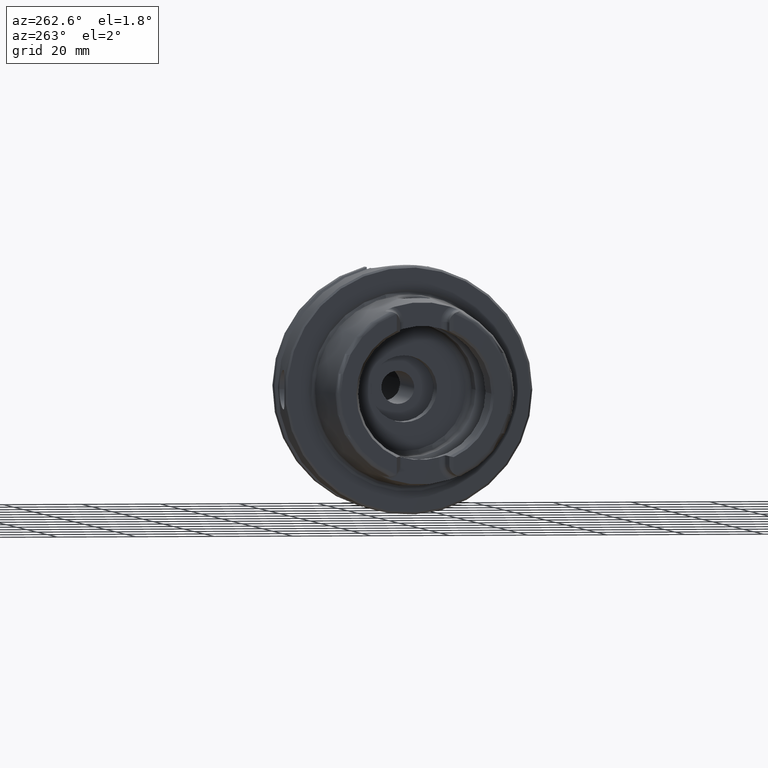
[diagram: clean part render]
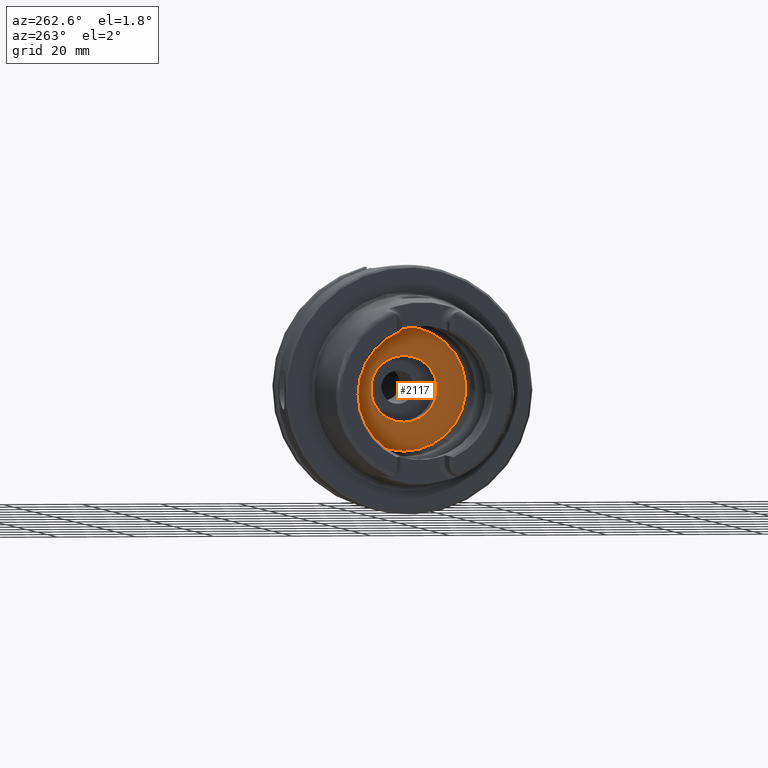
[diagram: same view with one face highlighted and labeled with its STEP entity id]
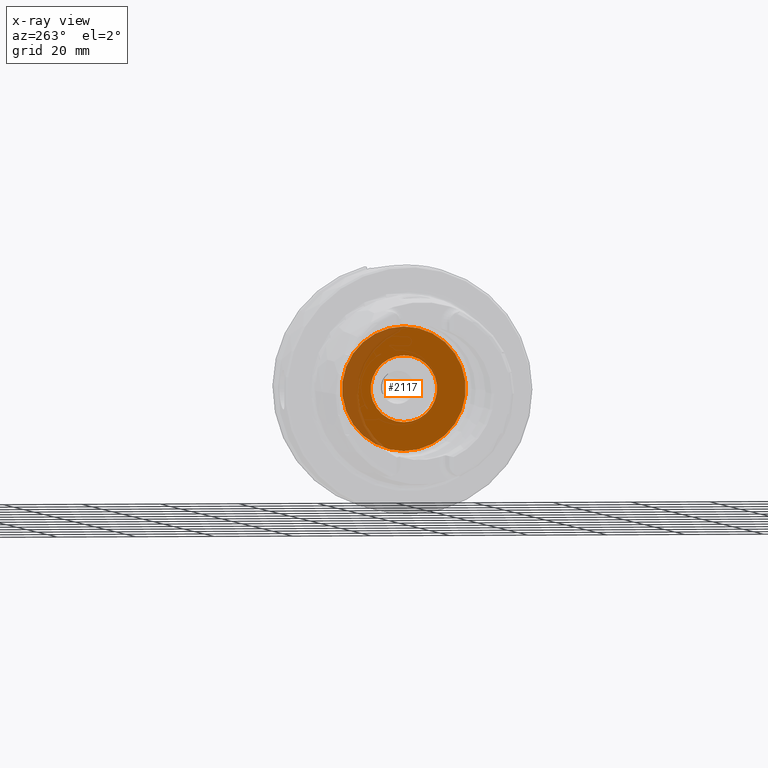
[diagram: x-ray of the same camera — body ghosted, the highlighted face saturated]
A machine part, auxiliary view. The second image highlights one B-rep face of the part: STEP entity #2117.
The next image is the same camera in x-ray: the body ghosted, the highlighted face saturated — about 21% of this face is hidden behind the body in this view.
In plain terms, the highlighted planar face has unit normal (1, 0, 0).
Its self-contained STEP definition (entity closure, byte-faithful):
#100=FACE_BOUND('',#457,.T.);
#142=PLANE('',#2383);
#324=FACE_OUTER_BOUND('',#456,.T.);
#456=EDGE_LOOP('',(#1939));
#457=EDGE_LOOP('',(#1940));
#796=CIRCLE('',#2372,8.458734);
#803=CIRCLE('',#2384,15.75);
#1009=VERTEX_POINT('',#4452);
#1015=VERTEX_POINT('',#4472);
#1318=EDGE_CURVE('',#1009,#1009,#796,.T.);
#1327=EDGE_CURVE('',#1015,#1015,#803,.T.);
#1939=ORIENTED_EDGE('',*,*,#1327,.T.);
#1940=ORIENTED_EDGE('',*,*,#1318,.T.);
#2117=ADVANCED_FACE('',(#324,#100),#142,.F.);
#2372=AXIS2_PLACEMENT_3D('',#4453,#2955,#2956);
#2383=AXIS2_PLACEMENT_3D('',#4471,#2979,#2980);
#2384=AXIS2_PLACEMENT_3D('',#4473,#2981,#2982);
#2955=DIRECTION('center_axis',(1.,0.,0.));
#2956=DIRECTION('ref_axis',(0.,0.,1.));
#2979=DIRECTION('center_axis',(1.,0.,0.));
#2980=DIRECTION('ref_axis',(0.,0.,-1.));
#2981=DIRECTION('center_axis',(-1.,0.,0.));
#2982=DIRECTION('ref_axis',(0.,0.,1.));
#4452=CARTESIAN_POINT('',(10.,-1.03589615179389E-15,-8.458734));
#4453=CARTESIAN_POINT('Origin',(10.,0.,0.));
#4471=CARTESIAN_POINT('Origin',(10.,15.75,0.));
#4472=CARTESIAN_POINT('',(10.,-1.92881870865708E-15,-15.75));
#4473=CARTESIAN_POINT('Origin',(10.,0.,0.));